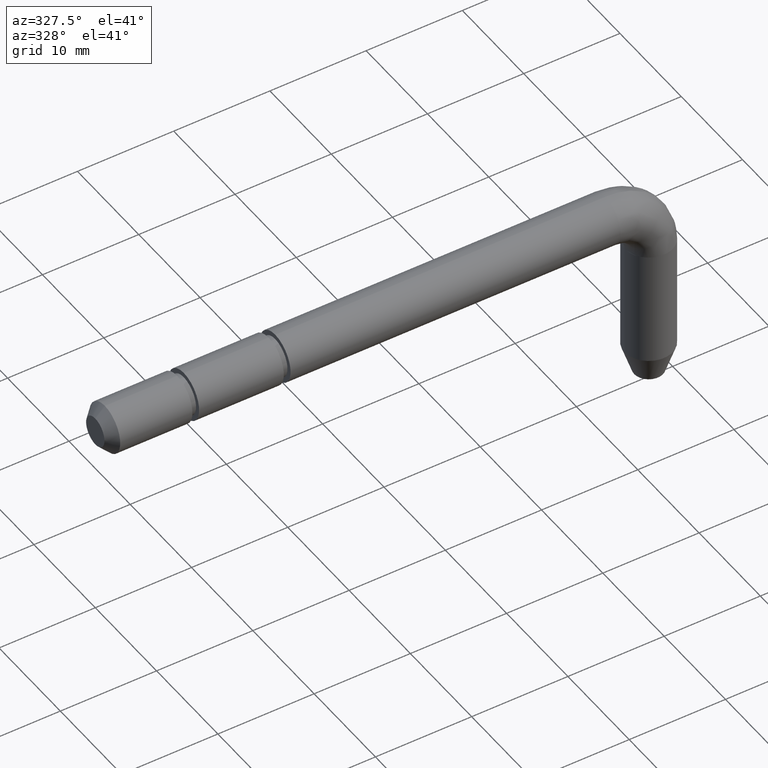
[diagram: clean part render]
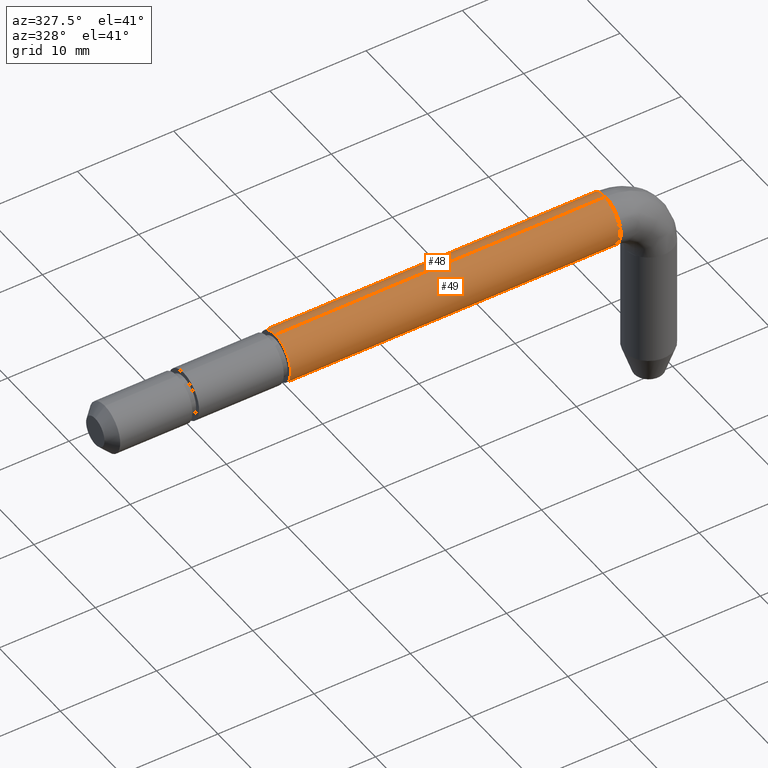
[diagram: same view with one multi-face feature highlighted, each face labeled with its STEP entity id]
A machine part, auxiliary view. The highlighted faces form ONE feature: a constant-radius fillet chain: 2 tangent blend faces with common blend radius 2.5 mm. The faces share edges in the B-rep.
Their STEP definitions:
[1] entity #49 (Cylinder):
#49=ADVANCED_FACE('',(#159),#158,.T.);
#158=CYLINDRICAL_SURFACE('',#408,2.50000000000E+00);
#159=FACE_OUTER_BOUND('',#409,.T.);
#405=CARTESIAN_POINT('',(5.64300000000E+01,4.15130844335E-14,2.53256980007E-30));
#406=DIRECTION('',(1.00000000000E+00,2.00971834712E-15,1.23059757049E-31));
#407=DIRECTION('',(-3.32487832155E-29,1.66052337734E-14,-1.00000000000E+00));
#408=AXIS2_PLACEMENT_3D('',#405,#406,#407);
#409=EDGE_LOOP('',(#536,#537,#538,#539));
#536=ORIENTED_EDGE('',*,*,#601,.F.);
#537=ORIENTED_EDGE('',*,*,#622,.T.);
#538=ORIENTED_EDGE('',*,*,#620,.F.);
#539=ORIENTED_EDGE('',*,*,#623,.F.);
#601=EDGE_CURVE('',#671,#670,#678,.T.);
#620=EDGE_CURVE('',#657,#650,#810,.T.);
#622=EDGE_CURVE('',#671,#650,#822,.T.);
#623=EDGE_CURVE('',#670,#657,#828,.T.);
#650=VERTEX_POINT('',#952);
#657=VERTEX_POINT('',#957);
#670=VERTEX_POINT('',#967);
#671=VERTEX_POINT('',#968);
#678=CIRCLE('',#976,2.50000000000E+00);
#810=CIRCLE('',#1070,2.50000000000E+00);
#822=(BOUNDED_CURVE() B_SPLINE_CURVE(1,(#1075,#1076),.UNSPECIFIED.,.F.,.F.) B_SPLINE_CURVE_WITH_KNOTS((2,2),(8.33333335810E-02,9.16666666255E-01),.UNSPECIFIED.) CURVE() GEOMETRIC_REPRESENTATION_ITEM() RATIONAL_B_SPLINE_CURVE((1.00000000000E+00,1.00000000000E+00)) REPRESENTATION_ITEM('') );
#828=(BOUNDED_CURVE() B_SPLINE_CURVE(1,(#1077,#1078),.UNSPECIFIED.,.F.,.F.) B_SPLINE_CURVE_WITH_KNOTS((2,2),(8.33333333333E-02,9.16666666667E-01),.UNSPECIFIED.) CURVE() GEOMETRIC_REPRESENTATION_ITEM() RATIONAL_B_SPLINE_CURVE((7.50000000000E-01,7.50000000000E-01)) REPRESENTATION_ITEM('') );
#952=CARTESIAN_POINT('',(5.30000000000E+01,-1.77635683940E-15,-2.50000000000E+00));
#957=CARTESIAN_POINT('',(5.30000000000E+01,3.06151588456E-16,2.50000000000E+00));
#967=CARTESIAN_POINT('',(1.87000000000E+01,-6.12313288242E-16,2.50000000000E+00));
#968=CARTESIAN_POINT('',(1.87000000000E+01,0.00000000000E+00,-2.50000000000E+00));
#973=CARTESIAN_POINT('',(1.87000000000E+01,-1.53080849893E-16,0.00000000000E+00));
#974=DIRECTION('',(-1.00000000000E+00,-5.02429586779E-16,-3.07649392623E-32));
#975=DIRECTION('',(-0.00000000000E+00,-6.12323399574E-17,1.00000000000E+00));
#976=AXIS2_PLACEMENT_3D('',#973,#974,#975);
#1067=CARTESIAN_POINT('',(5.30000000000E+01,1.79986057494E-16,-2.51600469243E-31));
#1068=DIRECTION('',(1.00000000000E+00,0.00000000000E+00,0.00000000000E+00));
#1069=DIRECTION('',(-0.00000000000E+00,7.19944229977E-17,-1.00000000000E+00));
#1070=AXIS2_PLACEMENT_3D('',#1067,#1068,#1069);
#1075=CARTESIAN_POINT('',(1.87000000102E+01,7.19949565088E-15,-2.50000000000E+00));
#1076=CARTESIAN_POINT('',(5.29999999831E+01,7.61328349024E-14,-2.50000000000E+00));
#1077=CARTESIAN_POINT('',(1.87000000000E+01,-7.59885981299E-14,2.50000000000E+00));
#1078=CARTESIAN_POINT('',(5.30000000000E+01,-6.90805437545E-15,2.50000000000E+00));
[2] entity #48 (Cylinder):
#48=ADVANCED_FACE('',(#149),#148,.T.);
#148=CYLINDRICAL_SURFACE('',#403,2.50000000000E+00);
#149=FACE_OUTER_BOUND('',#404,.T.);
#400=CARTESIAN_POINT('',(5.64300000000E+01,4.15130844335E-14,2.53256980007E-30));
#401=DIRECTION('',(1.00000000000E+00,2.00971834712E-15,1.23059757049E-31));
#402=DIRECTION('',(-3.32487832155E-29,1.66052337734E-14,-1.00000000000E+00));
#403=AXIS2_PLACEMENT_3D('',#400,#401,#402);
#404=EDGE_LOOP('',(#532,#533,#534,#535));
#532=ORIENTED_EDGE('',*,*,#598,.F.);
#533=ORIENTED_EDGE('',*,*,#622,.F.);
#534=ORIENTED_EDGE('',*,*,#600,.F.);
#535=ORIENTED_EDGE('',*,*,#623,.T.);
#598=EDGE_CURVE('',#650,#657,#658,.T.);
#600=EDGE_CURVE('',#670,#671,#672,.T.);
#622=EDGE_CURVE('',#671,#650,#822,.T.);
#623=EDGE_CURVE('',#670,#657,#828,.T.);
#650=VERTEX_POINT('',#952);
#657=VERTEX_POINT('',#957);
#658=CIRCLE('',#961,2.50000000000E+00);
#670=VERTEX_POINT('',#967);
#671=VERTEX_POINT('',#968);
#672=CIRCLE('',#972,2.50000000000E+00);
#822=(BOUNDED_CURVE() B_SPLINE_CURVE(1,(#1075,#1076),.UNSPECIFIED.,.F.,.F.) B_SPLINE_CURVE_WITH_KNOTS((2,2),(8.33333335810E-02,9.16666666255E-01),.UNSPECIFIED.) CURVE() GEOMETRIC_REPRESENTATION_ITEM() RATIONAL_B_SPLINE_CURVE((1.00000000000E+00,1.00000000000E+00)) REPRESENTATION_ITEM('') );
#828=(BOUNDED_CURVE() B_SPLINE_CURVE(1,(#1077,#1078),.UNSPECIFIED.,.F.,.F.) B_SPLINE_CURVE_WITH_KNOTS((2,2),(8.33333333333E-02,9.16666666667E-01),.UNSPECIFIED.) CURVE() GEOMETRIC_REPRESENTATION_ITEM() RATIONAL_B_SPLINE_CURVE((7.50000000000E-01,7.50000000000E-01)) REPRESENTATION_ITEM('') );
#952=CARTESIAN_POINT('',(5.30000000000E+01,-1.77635683940E-15,-2.50000000000E+00));
#957=CARTESIAN_POINT('',(5.30000000000E+01,3.06151588456E-16,2.50000000000E+00));
#958=CARTESIAN_POINT('',(5.30000000000E+01,1.30876389401E-16,-2.16222573071E-31));
#959=DIRECTION('',(1.00000000000E+00,-2.00971834712E-15,1.24382361928E-30));
#960=DIRECTION('',(-2.46111385727E-31,-7.41365080907E-16,-1.00000000000E+00));
#961=AXIS2_PLACEMENT_3D('',#958,#959,#960);
#967=CARTESIAN_POINT('',(1.87000000000E+01,-6.12313288242E-16,2.50000000000E+00));
#968=CARTESIAN_POINT('',(1.87000000000E+01,0.00000000000E+00,-2.50000000000E+00));
#969=CARTESIAN_POINT('',(1.87000000000E+01,-1.53080849893E-16,0.00000000000E+00));
#970=DIRECTION('',(-1.00000000000E+00,-5.02429586779E-16,-3.07649392623E-32));
#971=DIRECTION('',(-0.00000000000E+00,-6.12323399574E-17,1.00000000000E+00));
#972=AXIS2_PLACEMENT_3D('',#969,#970,#971);
#1075=CARTESIAN_POINT('',(1.87000000102E+01,7.19949565088E-15,-2.50000000000E+00));
#1076=CARTESIAN_POINT('',(5.29999999831E+01,7.61328349024E-14,-2.50000000000E+00));
#1077=CARTESIAN_POINT('',(1.87000000000E+01,-7.59885981299E-14,2.50000000000E+00));
#1078=CARTESIAN_POINT('',(5.30000000000E+01,-6.90805437545E-15,2.50000000000E+00));